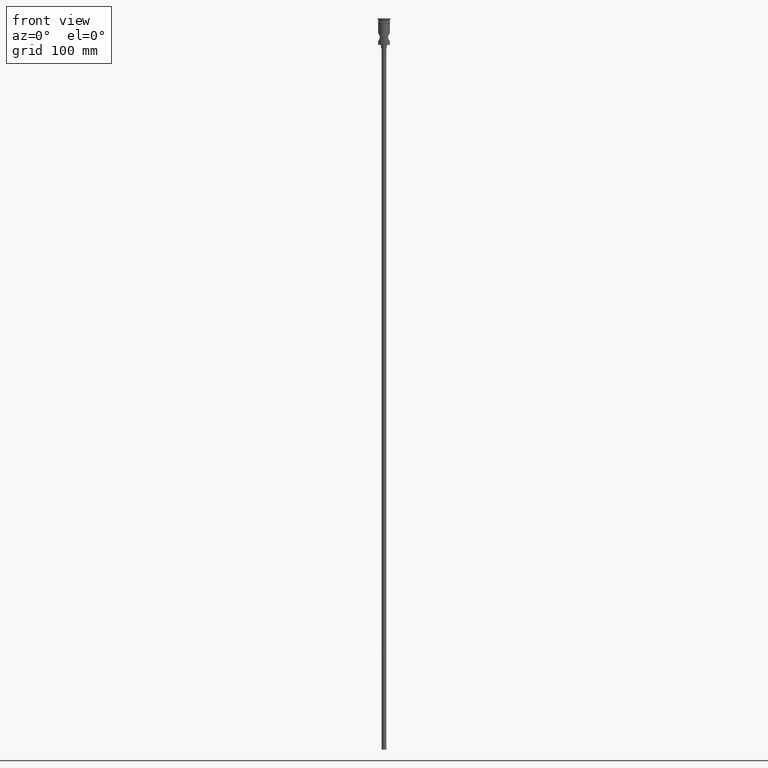
[diagram: clean part render]
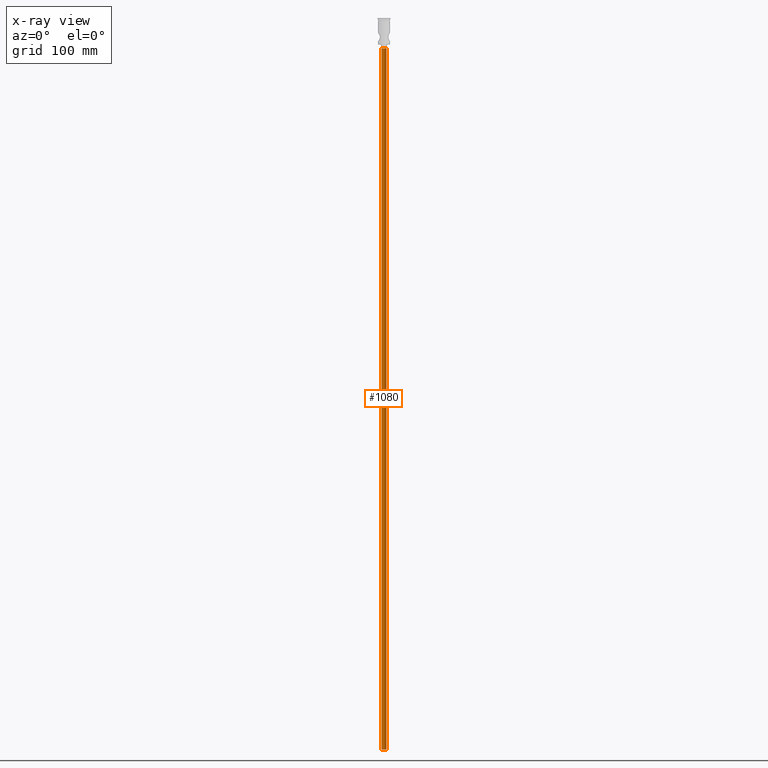
[diagram: x-ray — body ghosted, one internal face saturated and labeled with its STEP entity id]
A machine part, front view, then the same camera in x-ray: the body is ghosted and one INTERNAL B-rep face — a face not visible from any outside direction — is saturated and labeled: STEP entity #1080.
In plain terms, the highlighted cylindrical surface (edge-blend (fillet) strip) has radius 2 mm, axis along (-0, -0, 1).
Its self-contained STEP definition (entity closure, byte-faithful):
#51 = DIRECTION ( 'NONE',  ( -0.000000000000000000, -0.000000000000000000, 1.000000000000000000 ) ) ;
#169 = LINE ( 'NONE', #1070, #281 ) ;
#189 = EDGE_CURVE ( 'NONE', #828, #315, #827, .T. ) ;
#270 = CYLINDRICAL_SURFACE ( 'NONE', #617, 2.000000000000000000 ) ;
#281 = VECTOR ( 'NONE', #516, 1000.000000000000000 ) ;
#315 = VERTEX_POINT ( 'NONE', #1233 ) ;
#357 = CARTESIAN_POINT ( 'NONE',  ( 2.000000000000000000, 0.000000000000000000, -622.4999999999998863 ) ) ;
#372 = DIRECTION ( 'NONE',  ( -1.000000000000000000, 0.000000000000000000, 0.000000000000000000 ) ) ;
#427 = EDGE_CURVE ( 'NONE', #828, #1088, #169, .T. ) ;
#499 = AXIS2_PLACEMENT_3D ( 'NONE', #966, #1073, #372 ) ;
#505 = CARTESIAN_POINT ( 'NONE',  ( -2.000000000000000000, 2.449293598294706414E-16, -25.50000000000000000 ) ) ;
#516 = DIRECTION ( 'NONE',  ( -0.000000000000000000, -0.000000000000000000, 1.000000000000000000 ) ) ;
#617 = AXIS2_PLACEMENT_3D ( 'NONE', #1182, #51, #1197 ) ;
#701 = ORIENTED_EDGE ( 'NONE', *, *, #427, .T. ) ;
#818 = VERTEX_POINT ( 'NONE', #1432 ) ;
#827 = CIRCLE ( 'NONE', #1384, 2.000000000000000000 ) ;
#828 = VERTEX_POINT ( 'NONE', #1326 ) ;
#843 = DIRECTION ( 'NONE',  ( -1.000000000000000000, 0.000000000000000000, 0.000000000000000000 ) ) ;
#858 = FACE_OUTER_BOUND ( 'NONE', #999, .T. ) ;
#918 = LINE ( 'NONE', #357, #1036 ) ;
#966 = CARTESIAN_POINT ( 'NONE',  ( 0.000000000000000000, 0.000000000000000000, -25.50000000000000000 ) ) ;
#999 = EDGE_LOOP ( 'NONE', ( #1025, #701, #1110, #1032 ) ) ;
#1005 = EDGE_CURVE ( 'NONE', #1088, #818, #1389, .T. ) ;
#1025 = ORIENTED_EDGE ( 'NONE', *, *, #189, .F. ) ;
#1032 = ORIENTED_EDGE ( 'NONE', *, *, #1314, .F. ) ;
#1036 = VECTOR ( 'NONE', #1351, 1000.000000000000000 ) ;
#1070 = CARTESIAN_POINT ( 'NONE',  ( -2.000000000000000000, 2.449293598294706414E-16, -622.4999999999998863 ) ) ;
#1071 = CARTESIAN_POINT ( 'NONE',  ( 0.000000000000000000, 0.000000000000000000, -622.4999999999998863 ) ) ;
#1073 = DIRECTION ( 'NONE',  ( 0.000000000000000000, 0.000000000000000000, -1.000000000000000000 ) ) ;
#1080 = ADVANCED_FACE ( 'NONE', ( #858 ), #270, .T. ) ;
#1088 = VERTEX_POINT ( 'NONE', #505 ) ;
#1110 = ORIENTED_EDGE ( 'NONE', *, *, #1005, .T. ) ;
#1182 = CARTESIAN_POINT ( 'NONE',  ( 0.000000000000000000, 0.000000000000000000, -622.4999999999998863 ) ) ;
#1197 = DIRECTION ( 'NONE',  ( 1.000000000000000000, 0.000000000000000000, 0.000000000000000000 ) ) ;
#1233 = CARTESIAN_POINT ( 'NONE',  ( 2.000000000000000000, 0.000000000000000000, -622.4999999999998863 ) ) ;
#1314 = EDGE_CURVE ( 'NONE', #315, #818, #918, .T. ) ;
#1326 = CARTESIAN_POINT ( 'NONE',  ( -2.000000000000000000, 2.449293598294706414E-16, -622.4999999999998863 ) ) ;
#1351 = DIRECTION ( 'NONE',  ( -0.000000000000000000, -0.000000000000000000, 1.000000000000000000 ) ) ;
#1384 = AXIS2_PLACEMENT_3D ( 'NONE', #1071, #1435, #843 ) ;
#1389 = CIRCLE ( 'NONE', #499, 2.000000000000000000 ) ;
#1432 = CARTESIAN_POINT ( 'NONE',  ( 2.000000000000000000, 0.000000000000000000, -25.50000000000000000 ) ) ;
#1435 = DIRECTION ( 'NONE',  ( 0.000000000000000000, 0.000000000000000000, -1.000000000000000000 ) ) ;